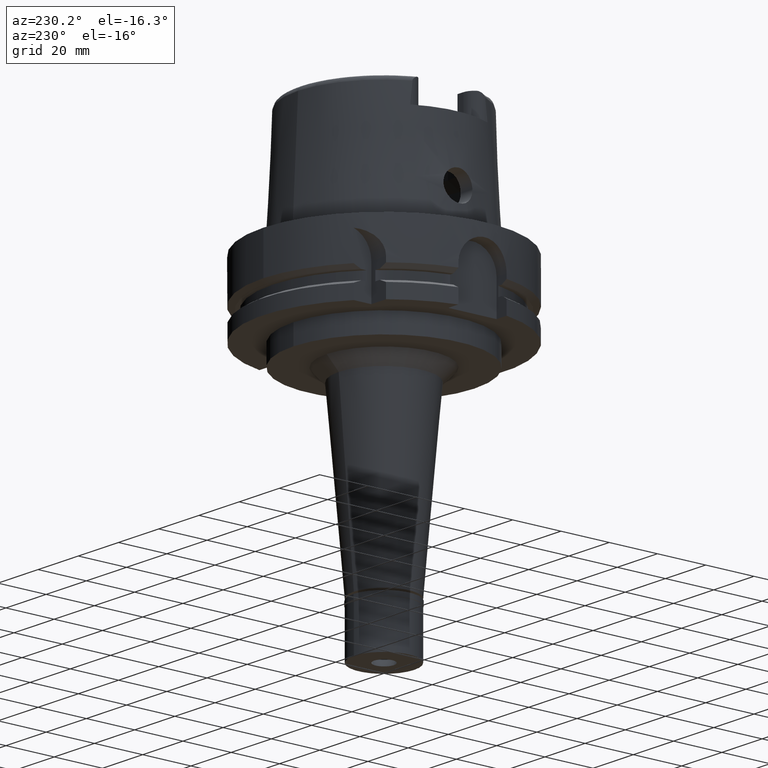
[diagram: clean part render]
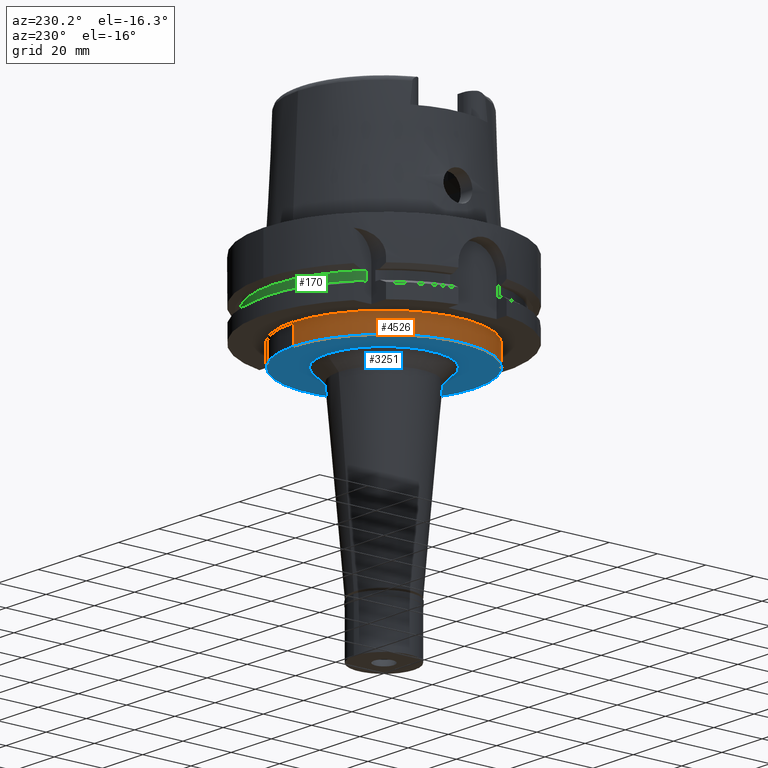
[diagram: same view with three faces highlighted in distinct colors, each labeled with its STEP entity id]
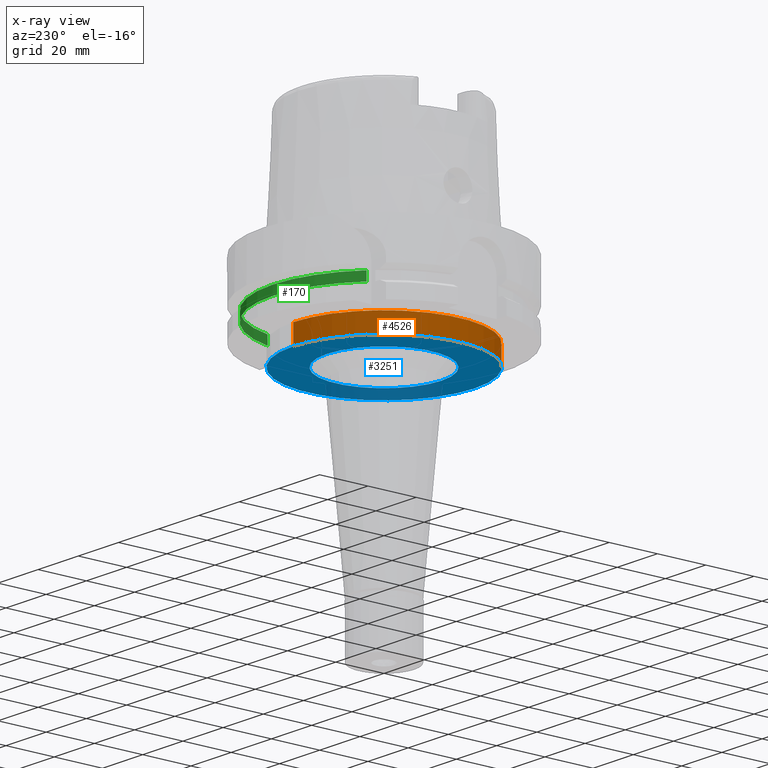
[diagram: x-ray of the same camera — body ghosted, the three highlighted faces saturated]
A machine part, auxiliary view with three faces highlighted in distinct colors.
The next image is the same camera in x-ray (body ghosted, the three faces saturated) — at least one of them is partly hidden behind the body in this view.
Their STEP definitions:

[orange] entity #4526 — the highlighted cylindrical surface (partial cylindrical patch) has radius 37.5 mm, axis along (0, 0, 1).
#346 = AXIS2_PLACEMENT_3D ( 'NONE', #2910, #776, #358 ) ;
#358 = DIRECTION ( 'NONE',  ( 0.0000000000000000000, 1.000000000000000000, 0.0000000000000000000 ) ) ;
#503 = VECTOR ( 'NONE', #5510, 1000.000000000000000 ) ;
#662 = AXIS2_PLACEMENT_3D ( 'NONE', #2790, #3593, #4876 ) ;
#671 = ORIENTED_EDGE ( 'NONE', *, *, #1092, .T. ) ;
#776 = DIRECTION ( 'NONE',  ( 0.0000000000000000000, 0.0000000000000000000, 1.000000000000000000 ) ) ;
#876 = EDGE_LOOP ( 'NONE', ( #2802, #888, #671, #3318 ) ) ;
#888 = ORIENTED_EDGE ( 'NONE', *, *, #5421, .F. ) ;
#1092 = EDGE_CURVE ( 'NONE', #4941, #2880, #1497, .T. ) ;
#1347 = CARTESIAN_POINT ( 'NONE',  ( 0.0000000000000000000, -37.50000000000000000, -29.00000000000000000 ) ) ;
#1497 = CIRCLE ( 'NONE', #3569, 37.50000000000000000 ) ;
#1733 = CARTESIAN_POINT ( 'NONE',  ( 0.0000000000000000000, 37.50000000000000000, -29.00000000000000000 ) ) ;
#2142 = DIRECTION ( 'NONE',  ( 0.0000000000000000000, -1.000000000000000000, 0.0000000000000000000 ) ) ;
#2250 = CARTESIAN_POINT ( 'NONE',  ( 0.0000000000000000000, 0.0000000000000000000, -29.00000000000000000 ) ) ;
#2707 = EDGE_CURVE ( 'NONE', #5206, #3574, #3039, .T. ) ;
#2790 = CARTESIAN_POINT ( 'NONE',  ( 0.0000000000000000000, 0.0000000000000000000, -137.7400000000000091 ) ) ;
#2802 = ORIENTED_EDGE ( 'NONE', *, *, #2707, .T. ) ;
#2880 = VERTEX_POINT ( 'NONE', #1733 ) ;
#2910 = CARTESIAN_POINT ( 'NONE',  ( 0.0000000000000000000, 0.0000000000000000000, -37.00000000000000000 ) ) ;
#2953 = LINE ( 'NONE', #5535, #503 ) ;
#3039 = CIRCLE ( 'NONE', #346, 37.50000000000000000 ) ;
#3064 = DIRECTION ( 'NONE',  ( 0.0000000000000000000, 0.0000000000000000000, -1.000000000000000000 ) ) ;
#3112 = FACE_OUTER_BOUND ( 'NONE', #876, .T. ) ;
#3151 = LINE ( 'NONE', #1347, #3923 ) ;
#3222 = CYLINDRICAL_SURFACE ( 'NONE', #662, 37.50000000000000000 ) ;
#3318 = ORIENTED_EDGE ( 'NONE', *, *, #5386, .T. ) ;
#3569 = AXIS2_PLACEMENT_3D ( 'NONE', #2250, #5591, #2142 ) ;
#3574 = VERTEX_POINT ( 'NONE', #3917 ) ;
#3593 = DIRECTION ( 'NONE',  ( 0.0000000000000000000, 0.0000000000000000000, 1.000000000000000000 ) ) ;
#3917 = CARTESIAN_POINT ( 'NONE',  ( 0.0000000000000000000, -37.50000000000000000, -37.00000000000000000 ) ) ;
#3923 = VECTOR ( 'NONE', #3064, 1000.000000000000000 ) ;
#4526 = ADVANCED_FACE ( 'NONE', ( #3112 ), #3222, .T. ) ;
#4876 = DIRECTION ( 'NONE',  ( 0.0000000000000000000, 1.000000000000000000, 0.0000000000000000000 ) ) ;
#4941 = VERTEX_POINT ( 'NONE', #5063 ) ;
#5063 = CARTESIAN_POINT ( 'NONE',  ( 0.0000000000000000000, -37.50000000000000000, -29.00000000000000000 ) ) ;
#5206 = VERTEX_POINT ( 'NONE', #5367 ) ;
#5367 = CARTESIAN_POINT ( 'NONE',  ( 0.0000000000000000000, 37.50000000000000000, -37.00000000000000000 ) ) ;
#5386 = EDGE_CURVE ( 'NONE', #2880, #5206, #2953, .T. ) ;
#5421 = EDGE_CURVE ( 'NONE', #4941, #3574, #3151, .T. ) ;
#5510 = DIRECTION ( 'NONE',  ( 0.0000000000000000000, 0.0000000000000000000, -1.000000000000000000 ) ) ;
#5535 = CARTESIAN_POINT ( 'NONE',  ( 0.0000000000000000000, 37.50000000000000000, -29.00000000000000000 ) ) ;
#5591 = DIRECTION ( 'NONE',  ( 0.0000000000000000000, 0.0000000000000000000, -1.000000000000000000 ) ) ;

[blue] entity #3251 — the highlighted planar face has unit normal (0, 0, 1).
#89 = FACE_OUTER_BOUND ( 'NONE', #3622, .T. ) ;
#346 = AXIS2_PLACEMENT_3D ( 'NONE', #2910, #776, #358 ) ;
#358 = DIRECTION ( 'NONE',  ( 0.0000000000000000000, 1.000000000000000000, 0.0000000000000000000 ) ) ;
#424 = EDGE_LOOP ( 'NONE', ( #4907, #3438 ) ) ;
#495 = CARTESIAN_POINT ( 'NONE',  ( 0.0000000000000000000, 0.0000000000000000000, -37.00000000000000000 ) ) ;
#564 = FACE_BOUND ( 'NONE', #424, .T. ) ;
#621 = CARTESIAN_POINT ( 'NONE',  ( 0.0000000000000000000, -23.77293717480999646, -37.00000000000000000 ) ) ;
#776 = DIRECTION ( 'NONE',  ( 0.0000000000000000000, 0.0000000000000000000, 1.000000000000000000 ) ) ;
#1061 = EDGE_CURVE ( 'NONE', #3574, #5206, #1493, .T. ) ;
#1493 = CIRCLE ( 'NONE', #4390, 37.50000000000000000 ) ;
#1548 = ORIENTED_EDGE ( 'NONE', *, *, #1061, .F. ) ;
#1617 = CARTESIAN_POINT ( 'NONE',  ( 0.0000000000000000000, 23.77293717480999646, -37.00000000000000000 ) ) ;
#1746 = AXIS2_PLACEMENT_3D ( 'NONE', #4503, #3159, #2237 ) ;
#2064 = ORIENTED_EDGE ( 'NONE', *, *, #2707, .F. ) ;
#2077 = DIRECTION ( 'NONE',  ( 0.0000000000000000000, 0.0000000000000000000, -1.000000000000000000 ) ) ;
#2207 = AXIS2_PLACEMENT_3D ( 'NONE', #4869, #4470, #2763 ) ;
#2237 = DIRECTION ( 'NONE',  ( 1.000000000000000000, 0.0000000000000000000, 0.0000000000000000000 ) ) ;
#2502 = CARTESIAN_POINT ( 'NONE',  ( 0.0000000000000000000, 0.0000000000000000000, -37.00000000000000000 ) ) ;
#2707 = EDGE_CURVE ( 'NONE', #5206, #3574, #3039, .T. ) ;
#2717 = EDGE_CURVE ( 'NONE', #3442, #4346, #3581, .T. ) ;
#2762 = PLANE ( 'NONE',  #1746 ) ;
#2763 = DIRECTION ( 'NONE',  ( 0.0000000000000000000, -1.000000000000000000, 0.0000000000000000000 ) ) ;
#2910 = CARTESIAN_POINT ( 'NONE',  ( 0.0000000000000000000, 0.0000000000000000000, -37.00000000000000000 ) ) ;
#3039 = CIRCLE ( 'NONE', #346, 37.50000000000000000 ) ;
#3159 = DIRECTION ( 'NONE',  ( 0.0000000000000000000, 0.0000000000000000000, 1.000000000000000000 ) ) ;
#3251 = ADVANCED_FACE ( 'NONE', ( #89, #564 ), #2762, .F. ) ;
#3438 = ORIENTED_EDGE ( 'NONE', *, *, #4628, .F. ) ;
#3442 = VERTEX_POINT ( 'NONE', #1617 ) ;
#3541 = DIRECTION ( 'NONE',  ( 0.0000000000000000000, 0.0000000000000000000, 1.000000000000000000 ) ) ;
#3574 = VERTEX_POINT ( 'NONE', #3917 ) ;
#3581 = CIRCLE ( 'NONE', #4860, 23.77293717480999646 ) ;
#3622 = EDGE_LOOP ( 'NONE', ( #2064, #1548 ) ) ;
#3637 = CIRCLE ( 'NONE', #2207, 23.77293717480999646 ) ;
#3917 = CARTESIAN_POINT ( 'NONE',  ( 0.0000000000000000000, -37.50000000000000000, -37.00000000000000000 ) ) ;
#4346 = VERTEX_POINT ( 'NONE', #621 ) ;
#4371 = DIRECTION ( 'NONE',  ( 0.0000000000000000000, -1.000000000000000000, 0.0000000000000000000 ) ) ;
#4390 = AXIS2_PLACEMENT_3D ( 'NONE', #495, #3541, #4371 ) ;
#4470 = DIRECTION ( 'NONE',  ( 0.0000000000000000000, 0.0000000000000000000, -1.000000000000000000 ) ) ;
#4503 = CARTESIAN_POINT ( 'NONE',  ( 0.0000000000000000000, 0.0000000000000000000, -37.00000000000000000 ) ) ;
#4628 = EDGE_CURVE ( 'NONE', #4346, #3442, #3637, .T. ) ;
#4860 = AXIS2_PLACEMENT_3D ( 'NONE', #2502, #2077, #5017 ) ;
#4869 = CARTESIAN_POINT ( 'NONE',  ( 0.0000000000000000000, 0.0000000000000000000, -37.00000000000000000 ) ) ;
#4907 = ORIENTED_EDGE ( 'NONE', *, *, #2717, .F. ) ;
#5017 = DIRECTION ( 'NONE',  ( 0.0000000000000000000, 1.000000000000000000, 0.0000000000000000000 ) ) ;
#5206 = VERTEX_POINT ( 'NONE', #5367 ) ;
#5367 = CARTESIAN_POINT ( 'NONE',  ( 0.0000000000000000000, 37.50000000000000000, -37.00000000000000000 ) ) ;

[green] entity #170 — the highlighted cylindrical surface (partial cylindrical patch) has radius 46 mm, axis along (0, 0, 1).
#161 = VERTEX_POINT ( 'NONE', #3114 ) ;
#163 = CARTESIAN_POINT ( 'NONE',  ( -31.50000000000000000, 33.52238058372000040, -18.12500000000000000 ) ) ;
#170 = ADVANCED_FACE ( 'NONE', ( #4046 ), #1391, .T. ) ;
#557 = LINE ( 'NONE', #163, #1677 ) ;
#606 = CARTESIAN_POINT ( 'NONE',  ( 0.0000000000000000000, 0.0000000000000000000, -21.87500000000000000 ) ) ;
#629 = DIRECTION ( 'NONE',  ( 0.9709874536577099979, 0.2391304347826024856, 0.0000000000000000000 ) ) ;
#646 = EDGE_CURVE ( 'NONE', #2414, #161, #557, .T. ) ;
#1001 = DIRECTION ( 'NONE',  ( 0.0000000000000000000, 0.0000000000000000000, 1.000000000000000000 ) ) ;
#1151 = CARTESIAN_POINT ( 'NONE',  ( 0.0000000000000000000, 0.0000000000000000000, -18.12500000000000000 ) ) ;
#1348 = DIRECTION ( 'NONE',  ( 0.0000000000000000000, 0.0000000000000000000, -1.000000000000000000 ) ) ;
#1391 = CYLINDRICAL_SURFACE ( 'NONE', #3385, 46.00000000000000000 ) ;
#1491 = DIRECTION ( 'NONE',  ( 0.0000000000000000000, 1.000000000000000000, 0.0000000000000000000 ) ) ;
#1677 = VECTOR ( 'NONE', #1348, 1000.000000000000000 ) ;
#2171 = ORIENTED_EDGE ( 'NONE', *, *, #5282, .T. ) ;
#2218 = DIRECTION ( 'NONE',  ( 0.0000000000000000000, 1.000000000000000000, 0.0000000000000000000 ) ) ;
#2334 = VERTEX_POINT ( 'NONE', #3061 ) ;
#2414 = VERTEX_POINT ( 'NONE', #4539 ) ;
#2448 = ORIENTED_EDGE ( 'NONE', *, *, #4384, .F. ) ;
#2487 = EDGE_CURVE ( 'NONE', #4514, #161, #5391, .T. ) ;
#2621 = EDGE_LOOP ( 'NONE', ( #3261, #2171, #2448, #3859 ) ) ;
#2822 = VECTOR ( 'NONE', #4956, 1000.000000000000000 ) ;
#2825 = DIRECTION ( 'NONE',  ( 0.0000000000000000000, 0.0000000000000000000, 1.000000000000000000 ) ) ;
#3061 = CARTESIAN_POINT ( 'NONE',  ( 44.66542286825000474, 11.00000000000000000, -18.12500000000000000 ) ) ;
#3104 = LINE ( 'NONE', #4847, #2822 ) ;
#3114 = CARTESIAN_POINT ( 'NONE',  ( -31.50000000000000000, 33.52238058372000040, -21.87500000000000000 ) ) ;
#3261 = ORIENTED_EDGE ( 'NONE', *, *, #646, .F. ) ;
#3385 = AXIS2_PLACEMENT_3D ( 'NONE', #4855, #1001, #2218 ) ;
#3684 = DIRECTION ( 'NONE',  ( 0.0000000000000000000, 0.0000000000000000000, -1.000000000000000000 ) ) ;
#3859 = ORIENTED_EDGE ( 'NONE', *, *, #2487, .T. ) ;
#4046 = FACE_OUTER_BOUND ( 'NONE', #2621, .T. ) ;
#4384 = EDGE_CURVE ( 'NONE', #4514, #2334, #3104, .T. ) ;
#4468 = CIRCLE ( 'NONE', #5099, 46.00000000000000000 ) ;
#4514 = VERTEX_POINT ( 'NONE', #5379 ) ;
#4539 = CARTESIAN_POINT ( 'NONE',  ( -31.50000000000000000, 33.52238058372000040, -18.12500000000000000 ) ) ;
#4847 = CARTESIAN_POINT ( 'NONE',  ( 44.66542286825000474, 11.00000000000000000, -21.87500000000000000 ) ) ;
#4855 = CARTESIAN_POINT ( 'NONE',  ( 0.0000000000000000000, 0.0000000000000000000, -137.7400000000000091 ) ) ;
#4956 = DIRECTION ( 'NONE',  ( 0.0000000000000000000, 0.0000000000000000000, 1.000000000000000000 ) ) ;
#5033 = AXIS2_PLACEMENT_3D ( 'NONE', #606, #2825, #629 ) ;
#5099 = AXIS2_PLACEMENT_3D ( 'NONE', #1151, #3684, #1491 ) ;
#5282 = EDGE_CURVE ( 'NONE', #2414, #2334, #4468, .T. ) ;
#5379 = CARTESIAN_POINT ( 'NONE',  ( 44.66542286825000474, 11.00000000000000000, -21.87500000000000000 ) ) ;
#5391 = CIRCLE ( 'NONE', #5033, 46.00000000000000000 ) ;